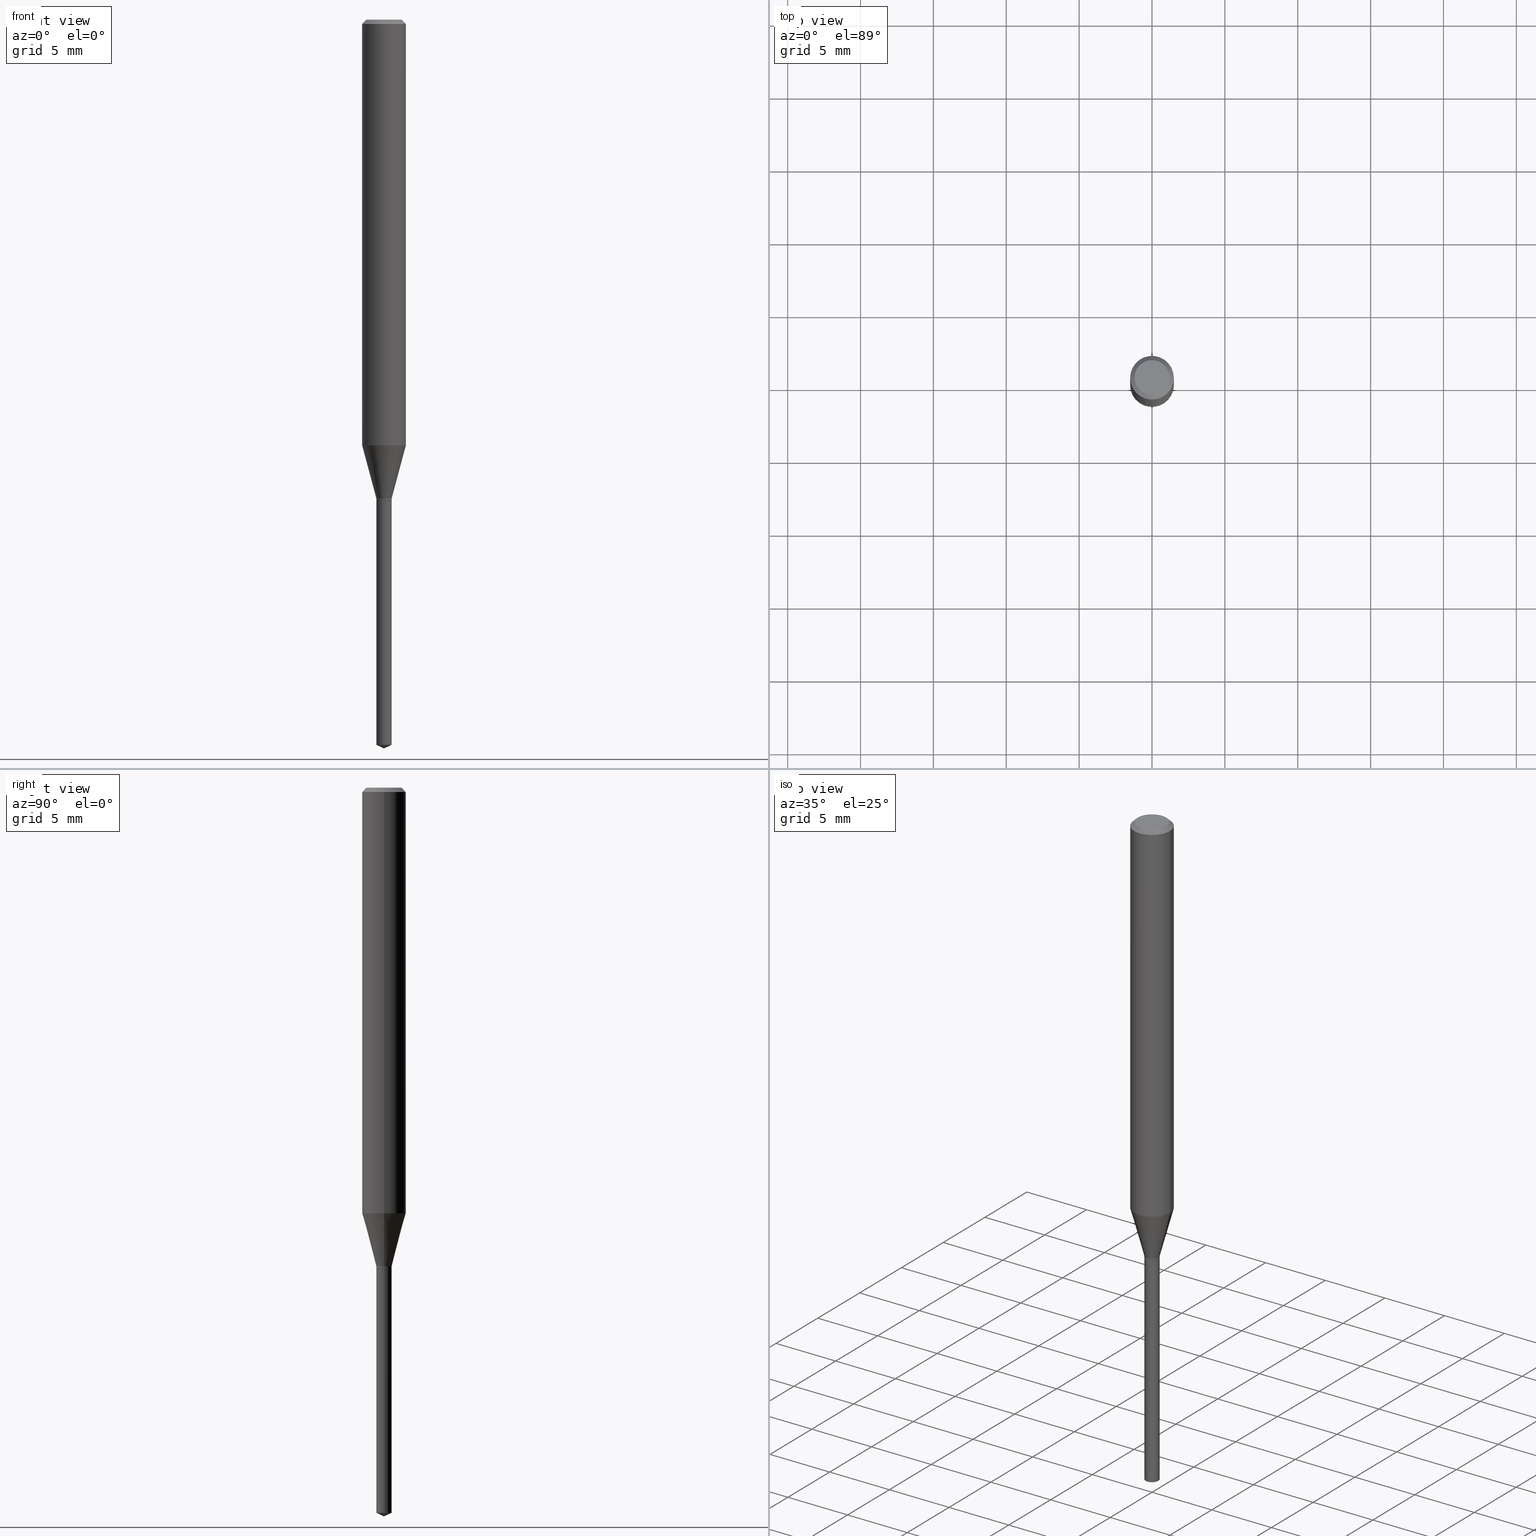
[diagram: canonical four-view strip — front | top / right | iso, engineering-drawing reading convention]
A machine part, canonical four-view strip (front | top / right | iso — engineering-drawing reading convention). The complete STEP part file that produces these views, byte-faithful:
ISO-10303-21;
HEADER;
FILE_DESCRIPTION (( 'STEP AP203' ),
    '1' );
FILE_NAME ('08149.STEP',
    '2024-04-24T13:09:04',
    ( '' ),
    ( '' ),
    'SwSTEP 2.0',
    'SolidWorks 2023',
    '' );
FILE_SCHEMA (( 'CONFIG_CONTROL_DESIGN' ));
ENDSEC;

DATA;
#1 = EDGE_CURVE ( 'NONE', #110, #261, #329, .T. ) ;
#2 = COORDINATED_UNIVERSAL_TIME_OFFSET ( 5, 0, .BEHIND. ) ;
#3 = CARTESIAN_POINT ( 'NONE',  ( 4.791580041195601474E-29, -6.841106398533702726E-15, -1.959370746859099510 ) ) ;
#4 = CONICAL_SURFACE ( 'NONE', #174, 0.02015000000000000124, 0.7853981633978495136 ) ;
#5 = AXIS2_PLACEMENT_3D ( 'NONE', #481, #12, #410 ) ;
#6 = CC_DESIGN_DATE_AND_TIME_ASSIGNMENT ( #356, #402, ( #467 ) ) ;
#7 = DIRECTION ( 'NONE',  ( 1.000000000000000000, -6.982962677686266711E-15, 0.000000000000000000 ) ) ;
#8 = DIRECTION ( 'NONE',  ( 1.000000000000000000, -6.982962677686266711E-15, 4.876176775795936353E-29 ) ) ;
#9 = CARTESIAN_POINT ( 'NONE',  ( 3.163213900800474296E-29, -4.516231111793608804E-15, -1.293500000000000094 ) ) ;
#10 = CARTESIAN_POINT ( 'NONE',  ( 2.888098660104663328E-31, -4.123439461173779030E-17, -0.01181000000000006871 ) ) ;
#11 = VECTOR ( 'NONE', #139, 39.37007874015748143 ) ;
#12 = DIRECTION ( 'NONE',  ( -2.445468806185136597E-29, 3.491481338843145583E-15, 1.000000000000000000 ) ) ;
#13 = DIRECTION ( 'NONE',  ( -0.9063077870366531563, 7.915267918739014631E-15, 0.4226182617406924469 ) ) ;
#14 = ORIENTED_EDGE ( 'NONE', *, *, #434, .F. ) ;
#15 = ORIENTED_EDGE ( 'NONE', *, *, #313, .T. ) ;
#16 = DIRECTION ( 'NONE',  ( -2.445468806185136597E-29, 3.491481338843145583E-15, 1.000000000000000000 ) ) ;
#17 = COORDINATED_UNIVERSAL_TIME_OFFSET ( 5, 0, .BEHIND. ) ;
#18 = AXIS2_PLACEMENT_3D ( 'NONE', #264, #78, #440 ) ;
#19 = AXIS2_PLACEMENT_3D ( 'NONE', #100, #370, #358 ) ;
#20 = VERTEX_POINT ( 'NONE', #437 ) ;
#21 = ADVANCED_FACE ( 'NONE', ( #104 ), #254, .T. ) ;
#22 =( LENGTH_UNIT ( ) NAMED_UNIT ( * ) SI_UNIT ( $, .METRE. ) );
#23 = DIRECTION ( 'NONE',  ( -2.445468806185136597E-29, 3.491481338843145583E-15, 1.000000000000000000 ) ) ;
#24 = CARTESIAN_POINT ( 'NONE',  ( -0.05905000000000006771, 4.195754854663396409E-16, -2.904631170795525045E-30 ) ) ;
#25 = CARTESIAN_POINT ( 'NONE',  ( 4.815128079378533515E-29, -6.874726756182153211E-15, -1.968999999999999861 ) ) ;
#26 = ORIENTED_EDGE ( 'NONE', *, *, #165, .T. ) ;
#27 = CARTESIAN_POINT ( 'NONE',  ( -0.02065000000000002944, -4.379454758674850674E-15, -1.293500000000000094 ) ) ;
#28 = DIRECTION ( 'NONE',  ( 2.445468806185136597E-29, -3.491481338843145583E-15, -1.000000000000000000 ) ) ;
#29 = VECTOR ( 'NONE', #340, 39.37007874015748143 ) ;
#30 = ADVANCED_FACE ( 'NONE', ( #406 ), #301, .T. ) ;
#31 = EDGE_CURVE ( 'NONE', #50, #20, #75, .T. ) ;
#32 = CIRCLE ( 'NONE', #309, 0.05904999999999999832 ) ;
#33 = PERSON_AND_ORGANIZATION ( #490, #257 ) ;
#34 = PRODUCT_DEFINITION_SHAPE ( 'NONE', 'NONE',  #72 ) ;
#35 = AXIS2_PLACEMENT_3D ( 'NONE', #216, #178, #324 ) ;
#36 = APPROVAL_PERSON_ORGANIZATION ( #218, #194, #66 ) ;
#37 = CALENDAR_DATE ( 2024, 24, 4 ) ;
#38 = DIRECTION ( 'NONE',  ( -2.445468806185136597E-29, 3.491481338843145583E-15, 1.000000000000000000 ) ) ;
#39 = EDGE_CURVE ( 'NONE', #279, #470, #129, .T. ) ;
#40 = EDGE_LOOP ( 'NONE', ( #58, #479, #166, #164 ) ) ;
#41 = PRODUCT ( '08149', '08149', '', ( #255 ) ) ;
#42 = AXIS2_PLACEMENT_3D ( 'NONE', #9, #416, #197 ) ;
#43 = CYLINDRICAL_SURFACE ( 'NONE', #77, 0.05905000000000006771 ) ;
#44 = CARTESIAN_POINT ( 'NONE',  ( -0.05904999999999999832, 3.711095515056362547E-16, -0.01181000000000006871 ) ) ;
#45 = DIRECTION ( 'NONE',  ( -2.445468806185136597E-29, 3.491481338843145583E-15, 1.000000000000000000 ) ) ;
#46 = ORIENTED_EDGE ( 'NONE', *, *, #224, .F. ) ;
#47 = CARTESIAN_POINT ( 'NONE',  ( 0.02065000000000000169, -4.682076475388656376E-15, -1.299699999999999855 ) ) ;
#48 = VERTEX_POINT ( 'NONE', #319 ) ;
#49 = CARTESIAN_POINT ( 'NONE',  ( 3.178375807398821559E-29, -4.537878296094435448E-15, -1.299699999999999855 ) ) ;
#50 = VERTEX_POINT ( 'NONE', #155 ) ;
#51 = CC_DESIGN_DATE_AND_TIME_ASSIGNMENT ( #69, #150, ( #72 ) ) ;
#52 = LINE ( 'NONE', #359, #215 ) ;
#53 = CONICAL_SURFACE ( 'NONE', #42, 0.02065000000000002944, 0.2617993877991499629 ) ;
#54 = ORIENTED_EDGE ( 'NONE', *, *, #117, .T. ) ;
#55 = DIRECTION ( 'NONE',  ( 1.000000000000000000, -6.982962677686264344E-15, 0.000000000000000000 ) ) ;
#56 = APPLICATION_PROTOCOL_DEFINITION ( 'international standard', 'config_control_design', 1994, #70 ) ;
#57 = ADVANCED_FACE ( 'NONE', ( #381 ), #360, .T. ) ;
#58 = ORIENTED_EDGE ( 'NONE', *, *, #31, .T. ) ;
#59 = CYLINDRICAL_SURFACE ( 'NONE', #272, 0.02065000000000000169 ) ;
#60 = CIRCLE ( 'NONE', #5, 0.05905000000000014404 ) ;
#61 = VERTEX_POINT ( 'NONE', #368 ) ;
#62 = DIRECTION ( 'NONE',  ( 1.000000000000000000, -6.982962677686266711E-15, 4.876176775795936353E-29 ) ) ;
#63 = ORIENTED_EDGE ( 'NONE', *, *, #434, .T. ) ;
#64 = CARTESIAN_POINT ( 'NONE',  ( 0.05904999999999999832, -4.463468013801466955E-16, -0.01181000000000006871 ) ) ;
#65 = EDGE_LOOP ( 'NONE', ( #391, #212, #388, #220 ) ) ;
#66 = APPROVAL_ROLE ( '' ) ;
#67 = CARTESIAN_POINT ( 'NONE',  ( 3.163213900800474296E-29, -4.516231111793608804E-15, -1.293500000000000094 ) ) ;
#68 = CC_DESIGN_PERSON_AND_ORGANIZATION_ASSIGNMENT ( #76, #154, ( #72 ) ) ;
#69 = DATE_AND_TIME ( #456, #208 ) ;
#70 = APPLICATION_CONTEXT ( 'configuration controlled 3d designs of mechanical parts and assemblies' ) ;
#71 = CARTESIAN_POINT ( 'NONE',  ( 3.178375807398821559E-29, -4.537878296094435448E-15, -1.299699999999999855 ) ) ;
#72 = PRODUCT_DEFINITION ( 'UNKNOWN', '', #232, #268 ) ;
#73 = ORIENTED_EDGE ( 'NONE', *, *, #224, .T. ) ;
#74 = APPROVAL_DATE_TIME ( #373, #480 ) ;
#75 = CIRCLE ( 'NONE', #160, 0.02065000000000000169 ) ;
#76 = PERSON_AND_ORGANIZATION ( #490, #257 ) ;
#77 = AXIS2_PLACEMENT_3D ( 'NONE', #344, #195, #8 ) ;
#78 = DIRECTION ( 'NONE',  ( -2.445468806185136597E-29, 3.491481338843145583E-15, 1.000000000000000000 ) ) ;
#79 = DIRECTION ( 'NONE',  ( 1.000000000000000000, -6.982962677686264344E-15, 0.000000000000000000 ) ) ;
#80 = SECURITY_CLASSIFICATION_LEVEL ( 'unclassified' ) ;
#81 = EDGE_CURVE ( 'NONE', #90, #438, #32, .T. ) ;
#82 = DIRECTION ( 'NONE',  ( -2.445468806185136597E-29, 3.491481338843145583E-15, 1.000000000000000000 ) ) ;
#83 = ORIENTED_EDGE ( 'NONE', *, *, #31, .F. ) ;
#84 = DIRECTION ( 'NONE',  ( 1.000000000000000000, -6.982962677686264344E-15, 0.000000000000000000 ) ) ;
#85 = DIRECTION ( 'NONE',  ( -1.000000000000000000, 6.982962677686266711E-15, 0.000000000000000000 ) ) ;
#86 = FACE_OUTER_BOUND ( 'NONE', #202, .T. ) ;
#87 = ORIENTED_EDGE ( 'NONE', *, *, #304, .T. ) ;
#88 = DIRECTION ( 'NONE',  ( 1.000000000000000000, -6.982962677686254878E-15, 0.000000000000000000 ) ) ;
#89 = DIRECTION ( 'NONE',  ( -2.445468806185136877E-29, 3.491481338843145188E-15, 1.000000000000000000 ) ) ;
#90 = VERTEX_POINT ( 'NONE', #471 ) ;
#91 = FACE_OUTER_BOUND ( 'NONE', #352, .T. ) ;
#92 = EDGE_CURVE ( 'NONE', #170, #110, #274, .T. ) ;
#93 = DIRECTION ( 'NONE',  ( 1.000000000000000000, -6.982962677686286432E-15, 0.000000000000000000 ) ) ;
#94 = EDGE_LOOP ( 'NONE', ( #374, #482, #128, #207 ) ) ;
#95 = DIRECTION ( 'NONE',  ( -2.445468806185136597E-29, 3.491481338843145583E-15, 1.000000000000000000 ) ) ;
#96 = EDGE_LOOP ( 'NONE', ( #285, #429 ) ) ;
#97 = AXIS2_PLACEMENT_3D ( 'NONE', #262, #487, #62 ) ;
#98 = AXIS2_PLACEMENT_3D ( 'NONE', #390, #23, #267 ) ;
#99 = CC_DESIGN_SECURITY_CLASSIFICATION ( #467, ( #232 ) ) ;
#100 = CARTESIAN_POINT ( 'NONE',  ( 4.132873053354867254E-48, -5.900647395337818946E-34, -1.690012582823346072E-19 ) ) ;
#101 = EDGE_CURVE ( 'NONE', #363, #140, #338, .T. ) ;
#102 = ORIENTED_EDGE ( 'NONE', *, *, #233, .F. ) ;
#103 = ORIENTED_EDGE ( 'NONE', *, *, #92, .T. ) ;
#104 = FACE_OUTER_BOUND ( 'NONE', #308, .T. ) ;
#105 = DIMENSIONAL_EXPONENTS ( 1.000000000000000000, 0.000000000000000000, 0.000000000000000000, 0.000000000000000000, 0.000000000000000000, 0.000000000000000000, 0.000000000000000000 ) ;
#106 = AXIS2_PLACEMENT_3D ( 'NONE', #126, #169, #84 ) ;
#107 = SHAPE_DEFINITION_REPRESENTATION ( #34, #204 ) ;
#108 = DIRECTION ( 'NONE',  ( -1.000000000000000000, 6.982962677686265922E-15, -4.876176775795935793E-29 ) ) ;
#109 = ORIENTED_EDGE ( 'NONE', *, *, #347, .T. ) ;
#110 = VERTEX_POINT ( 'NONE', #417 ) ;
#111 = DIRECTION ( 'NONE',  ( 1.000000000000000000, 0.000000000000000000, 0.000000000000000000 ) ) ;
#112 = CALENDAR_DATE ( 2024, 24, 4 ) ;
#113 = CARTESIAN_POINT ( 'NONE',  ( -9.146317137672921654E-28, 1.305851684738629534E-13, 37.40107874015748024 ) ) ;
#114 = AXIS2_PLACEMENT_3D ( 'NONE', #314, #203, #88 ) ;
#115 = APPROVAL_ROLE ( '' ) ;
#116 = CC_DESIGN_APPROVAL ( #480, ( #72 ) ) ;
#117 = EDGE_CURVE ( 'NONE', #326, #48, #443, .T. ) ;
#118 = APPROVAL_DATE_TIME ( #157, #354 ) ;
#119 = DIRECTION ( 'NONE',  ( 2.445468806185136597E-29, -3.491481338843145583E-15, -1.000000000000000000 ) ) ;
#120 = APPROVAL_STATUS ( 'not_yet_approved' ) ;
#121 = CIRCLE ( 'NONE', #466, 0.02065000000000002944 ) ;
#122 = LOCAL_TIME ( 9, 9, 4.000000000000000000, #2 ) ;
#123 = CARTESIAN_POINT ( 'NONE',  ( 2.888098660104663328E-31, -4.123439461173779030E-17, -0.01181000000000006871 ) ) ;
#124 = ADVANCED_FACE ( 'NONE', ( #86 ), #413, .T. ) ;
#125 = DIRECTION ( 'NONE',  ( 1.000000000000000000, -6.982962677686266711E-15, 0.000000000000000000 ) ) ;
#126 = CARTESIAN_POINT ( 'NONE',  ( 3.178375807398821559E-29, -4.537878296094435448E-15, -1.299699999999999855 ) ) ;
#127 = ORIENTED_EDGE ( 'NONE', *, *, #81, .T. ) ;
#128 = ORIENTED_EDGE ( 'NONE', *, *, #81, .F. ) ;
#129 = CIRCLE ( 'NONE', #400, 0.04724000000000000421 ) ;
#130 = AXIS2_PLACEMENT_3D ( 'NONE', #343, #323, #289 ) ;
#131 = ADVANCED_FACE ( 'NONE', ( #201 ), #4, .T. ) ;
#132 = LINE ( 'NONE', #379, #349 ) ;
#133 = DIRECTION ( 'NONE',  ( 1.000000000000000000, -6.982962677686267499E-15, 0.000000000000000000 ) ) ;
#134 = ORIENTED_EDGE ( 'NONE', *, *, #414, .T. ) ;
#135 = VERTEX_POINT ( 'NONE', #383 ) ;
#136 = EDGE_CURVE ( 'NONE', #61, #20, #198, .T. ) ;
#137 = AXIS2_PLACEMENT_3D ( 'NONE', #173, #321, #111 ) ;
#138 = DIRECTION ( 'NONE',  ( 1.000000000000000000, -6.982962677686266711E-15, 4.876185090822587894E-29 ) ) ;
#139 = DIRECTION ( 'NONE',  ( -2.445468806185136877E-29, 3.491481338843145188E-15, 1.000000000000000000 ) ) ;
#140 = VERTEX_POINT ( 'NONE', #235 ) ;
#141 = APPROVAL_DATE_TIME ( #397, #194 ) ;
#142 =( CONVERSION_BASED_UNIT ( 'INCH', #395 ) LENGTH_UNIT ( ) NAMED_UNIT ( #105 ) );
#143 = ORIENTED_EDGE ( 'NONE', *, *, #392, .T. ) ;
#144 = ADVANCED_FACE ( 'NONE', ( #276 ), #427, .T. ) ;
#145 = DIRECTION ( 'NONE',  ( -1.000000000000000000, 6.982962677686266711E-15, 0.000000000000000000 ) ) ;
#146 = CIRCLE ( 'NONE', #114, 0.02065000000000002944 ) ;
#147 = ORIENTED_EDGE ( 'NONE', *, *, #486, .T. ) ;
#148 = ORIENTED_EDGE ( 'NONE', *, *, #290, .F. ) ;
#149 = DIRECTION ( 'NONE',  ( -2.445468806185136877E-29, 3.491481338843145188E-15, 1.000000000000000000 ) ) ;
#150 = DATE_TIME_ROLE ( 'creation_date' ) ;
#151 = CARTESIAN_POINT ( 'NONE',  ( -0.02015000000000000124, -4.394703934838774463E-15, -1.299699999999999855 ) ) ;
#152 = MANIFOLD_SOLID_BREP ( 'Body-Move/Copy2[1]', #421 ) ;
#153 = ADVANCED_FACE ( 'NONE', ( #91 ), #43, .T. ) ;
#154 = PERSON_AND_ORGANIZATION_ROLE ( 'creator' ) ;
#155 = CARTESIAN_POINT ( 'NONE',  ( 0.02065000000000000863, -6.985304577827923654E-15, -1.959370746859099510 ) ) ;
#156 = DIRECTION ( 'NONE',  ( -2.445468806185136597E-29, 3.491481338843145583E-15, 1.000000000000000000 ) ) ;
#157 = DATE_AND_TIME ( #455, #122 ) ;
#158 = EDGE_CURVE ( 'NONE', #110, #135, #146, .T. ) ;
#159 = LINE ( 'NONE', #418, #322 ) ;
#160 = AXIS2_PLACEMENT_3D ( 'NONE', #217, #250, #55 ) ;
#161 = CC_DESIGN_APPROVAL ( #194, ( #467 ) ) ;
#162 = CARTESIAN_POINT ( 'NONE',  ( -0.02015000000000000124, -4.392054707664663262E-15, -1.299699999999999855 ) ) ;
#163 = CARTESIAN_POINT ( 'NONE',  ( 0.02015000000000000124, -4.678584994049814158E-15, -1.299699999999999855 ) ) ;
#164 = ORIENTED_EDGE ( 'NONE', *, *, #165, .F. ) ;
#165 = EDGE_CURVE ( 'NONE', #50, #48, #242, .T. ) ;
#166 = ORIENTED_EDGE ( 'NONE', *, *, #414, .F. ) ;
#167 = AXIS2_PLACEMENT_3D ( 'NONE', #206, #469, #463 ) ;
#168 = AXIS2_PLACEMENT_3D ( 'NONE', #71, #260, #361 ) ;
#169 = DIRECTION ( 'NONE',  ( -2.445468806185136597E-29, 3.491481338843145583E-15, 1.000000000000000000 ) ) ;
#170 = VERTEX_POINT ( 'NONE', #465 ) ;
#171 = ORIENTED_EDGE ( 'NONE', *, *, #200, .F. ) ;
#172 = ORIENTED_EDGE ( 'NONE', *, *, #182, .T. ) ;
#173 = CARTESIAN_POINT ( 'NONE',  ( 0.000000000000000000, 0.000000000000000000, 0.000000000000000000 ) ) ;
#174 = AXIS2_PLACEMENT_3D ( 'NONE', #350, #284, #428 ) ;
#175 = AXIS2_PLACEMENT_3D ( 'NONE', #123, #119, #85 ) ;
#176 = LOCAL_TIME ( 9, 9, 4.000000000000000000, #193 ) ;
#177 = EDGE_LOOP ( 'NONE', ( #87, #109, #311, #431 ) ) ;
#178 = DIRECTION ( 'NONE',  ( -2.445468806185136597E-29, 3.491481338843145583E-15, 1.000000000000000000 ) ) ;
#179 = ORIENTED_EDGE ( 'NONE', *, *, #39, .T. ) ;
#180 = APPROVAL_STATUS ( 'not_yet_approved' ) ;
#181 = DIRECTION ( 'NONE',  ( 1.000000000000000000, -6.982962677686254878E-15, 0.000000000000000000 ) ) ;
#182 = EDGE_CURVE ( 'NONE', #140, #90, #244, .T. ) ;
#183 = DIRECTION ( 'NONE',  ( 0.7071067811865453523, -7.319954787623248157E-15, -0.7071067811865496822 ) ) ;
#184 = DIRECTION ( 'NONE',  ( -0.7071067811868312347, 7.493145998871379679E-15, 0.7071067811862637997 ) ) ;
#185 = AXIS2_PLACEMENT_3D ( 'NONE', #439, #252, #259 ) ;
#186 = DIRECTION ( 'NONE',  ( -2.445468806185136597E-29, 3.491481338843145583E-15, 1.000000000000000000 ) ) ;
#187 = CARTESIAN_POINT ( 'NONE',  ( 3.178375807398821559E-29, -4.537878296094435448E-15, -1.299699999999999855 ) ) ;
#188 = EDGE_CURVE ( 'NONE', #261, #140, #52, .T. ) ;
#189 = PERSON_AND_ORGANIZATION_ROLE ( 'design_owner' ) ;
#190 = COORDINATED_UNIVERSAL_TIME_OFFSET ( 5, 0, .BEHIND. ) ;
#191 = AXIS2_PLACEMENT_3D ( 'NONE', #293, #28, #145 ) ;
#192 = APPLICATION_CONTEXT ( 'configuration controlled 3d designs of mechanical parts and assemblies' ) ;
#193 = COORDINATED_UNIVERSAL_TIME_OFFSET ( 5, 0, .BEHIND. ) ;
#194 = APPROVAL ( #180, 'UNSPECIFIED' ) ;
#195 = DIRECTION ( 'NONE',  ( -2.445468806185136597E-29, 3.491481338843145583E-15, 1.000000000000000000 ) ) ;
#196 = DIRECTION ( 'NONE',  ( 1.000000000000000000, -6.982962677686286432E-15, 0.000000000000000000 ) ) ;
#197 = DIRECTION ( 'NONE',  ( 1.000000000000000000, -6.982962677686254878E-15, 0.000000000000000000 ) ) ;
#198 = LINE ( 'NONE', #430, #348 ) ;
#199 = CONICAL_SURFACE ( 'NONE', #357, 0.02015000000000000124, 0.7853981633978495136 ) ;
#200 = EDGE_CURVE ( 'NONE', #473, #261, #433, .T. ) ;
#201 = FACE_OUTER_BOUND ( 'NONE', #365, .T. ) ;
#202 = EDGE_LOOP ( 'NONE', ( #236, #147, #102 ) ) ;
#203 = DIRECTION ( 'NONE',  ( -2.445468806185136597E-29, 3.491481338843145583E-15, 1.000000000000000000 ) ) ;
#204 = ADVANCED_BREP_SHAPE_REPRESENTATION ( '08149', ( #152, #477, #137 ), #423 ) ;
#205 = ORIENTED_EDGE ( 'NONE', *, *, #253, .F. ) ;
#206 = CARTESIAN_POINT ( 'NONE',  ( 2.812751929612976794E-29, -4.015864298984345288E-15, -1.150189248989355040 ) ) ;
#207 = ORIENTED_EDGE ( 'NONE', *, *, #182, .F. ) ;
#208 = LOCAL_TIME ( 9, 9, 4.000000000000000000, #303 ) ;
#209 = ORIENTED_EDGE ( 'NONE', *, *, #117, .F. ) ;
#210 = ORIENTED_EDGE ( 'NONE', *, *, #409, .T. ) ;
#211 = EDGE_CURVE ( 'NONE', #363, #438, #426, .T. ) ;
#212 = ORIENTED_EDGE ( 'NONE', *, *, #253, .T. ) ;
#213 = PERSON_AND_ORGANIZATION ( #490, #257 ) ;
#214 = DIRECTION ( 'NONE',  ( 0.9063077870366531563, -4.853149677051426910E-15, 0.4226182617406924469 ) ) ;
#215 = VECTOR ( 'NONE', #399, 39.37007874015748854 ) ;
#216 = CARTESIAN_POINT ( 'NONE',  ( 3.163213900800474296E-29, -4.516231111793608804E-15, -1.293500000000000094 ) ) ;
#217 = CARTESIAN_POINT ( 'NONE',  ( 4.791580041195601474E-29, -6.841106398533702726E-15, -1.959370746859099510 ) ) ;
#218 = PERSON_AND_ORGANIZATION ( #490, #257 ) ;
#219 = ADVANCED_FACE ( 'NONE', ( #227 ), #53, .T. ) ;
#220 = ORIENTED_EDGE ( 'NONE', *, *, #188, .F. ) ;
#221 = LINE ( 'NONE', #398, #11 ) ;
#222 = ORIENTED_EDGE ( 'NONE', *, *, #188, .T. ) ;
#223 = PLANE ( 'NONE',  #19 ) ;
#224 = EDGE_CURVE ( 'NONE', #438, #90, #339, .T. ) ;
#225 = DIRECTION ( 'NONE',  ( 1.000000000000000000, -6.982962677686267499E-15, 0.000000000000000000 ) ) ;
#226 = AXIS2_PLACEMENT_3D ( 'NONE', #187, #325, #108 ) ;
#227 = FACE_OUTER_BOUND ( 'NONE', #316, .T. ) ;
#228 = FACE_OUTER_BOUND ( 'NONE', #94, .T. ) ;
#229 = PERSON_AND_ORGANIZATION ( #490, #257 ) ;
#230 = AXIS2_PLACEMENT_3D ( 'NONE', #278, #45, #419 ) ;
#231 = CONICAL_SURFACE ( 'NONE', #175, 0.05904999999999999832, 0.7853981633974452814 ) ;
#232 = PRODUCT_DEFINITION_FORMATION_WITH_SPECIFIED_SOURCE ( 'ANY', '', #41, .NOT_KNOWN. ) ;
#233 = EDGE_CURVE ( 'NONE', #20, #50, #459, .T. ) ;
#234 = PERSON_AND_ORGANIZATION ( #490, #257 ) ;
#235 = CARTESIAN_POINT ( 'NONE',  ( 0.05905000000000015098, -4.428208245101720208E-15, -1.150189248989355040 ) ) ;
#236 = ORIENTED_EDGE ( 'NONE', *, *, #136, .F. ) ;
#237 = AXIS2_PLACEMENT_3D ( 'NONE', #67, #186, #334 ) ;
#238 = DIRECTION ( 'NONE',  ( -2.445468806185136597E-29, 3.491481338843145583E-15, 1.000000000000000000 ) ) ;
#239 = CIRCLE ( 'NONE', #185, 0.02065000000000000169 ) ;
#240 = ORIENTED_EDGE ( 'NONE', *, *, #233, .T. ) ;
#241 = VECTOR ( 'NONE', #149, 39.37007874015748143 ) ;
#242 = LINE ( 'NONE', #47, #341 ) ;
#243 = ORIENTED_EDGE ( 'NONE', *, *, #200, .T. ) ;
#244 = LINE ( 'NONE', #389, #29 ) ;
#245 = DIRECTION ( 'NONE',  ( 1.000000000000000000, -6.982962677686266711E-15, 4.876176775795936353E-29 ) ) ;
#246 = ORIENTED_EDGE ( 'NONE', *, *, #409, .F. ) ;
#247 = EDGE_CURVE ( 'NONE', #279, #438, #460, .T. ) ;
#248 = CIRCLE ( 'NONE', #168, 0.02015000000000000124 ) ;
#249 = LOCAL_TIME ( 9, 9, 4.000000000000000000, #190 ) ;
#250 = DIRECTION ( 'NONE',  ( -2.445468806185136597E-29, 3.491481338843145583E-15, 1.000000000000000000 ) ) ;
#251 = FACE_OUTER_BOUND ( 'NONE', #263, .T. ) ;
#252 = DIRECTION ( 'NONE',  ( -2.445468806185136597E-29, 3.491481338843145583E-15, 1.000000000000000000 ) ) ;
#253 = EDGE_CURVE ( 'NONE', #473, #363, #159, .T. ) ;
#254 = CYLINDRICAL_SURFACE ( 'NONE', #97, 0.02065000000000002944 ) ;
#255 = MECHANICAL_CONTEXT ( 'NONE', #70, 'mechanical' ) ;
#256 = VECTOR ( 'NONE', #446, 39.37007874015748143 ) ;
#257 = ORGANIZATION ( 'UNSPECIFIED', 'UNSPECIFIED', '' ) ;
#258 = CARTESIAN_POINT ( 'NONE',  ( 2.888098660104663328E-31, -4.123439461173779030E-17, -0.01181000000000006871 ) ) ;
#259 = DIRECTION ( 'NONE',  ( 1.000000000000000000, -6.982962677686264344E-15, 0.000000000000000000 ) ) ;
#260 = DIRECTION ( 'NONE',  ( -2.445468806185136597E-29, 3.491481338843145583E-15, 1.000000000000000000 ) ) ;
#261 = VERTEX_POINT ( 'NONE', #468 ) ;
#262 = CARTESIAN_POINT ( 'NONE',  ( 0.000000000000000000, 0.000000000000000000, 0.000000000000000000 ) ) ;
#263 = EDGE_LOOP ( 'NONE', ( #179, #143 ) ) ;
#264 = CARTESIAN_POINT ( 'NONE',  ( 0.000000000000000000, 0.000000000000000000, 0.000000000000000000 ) ) ;
#265 = APPROVAL_ROLE ( '' ) ;
#266 = DIRECTION ( 'NONE',  ( -2.445468806185136597E-29, 3.491481338843145583E-15, 1.000000000000000000 ) ) ;
#267 = DIRECTION ( 'NONE',  ( 1.000000000000000000, -6.982962677686266711E-15, 4.876185090822587894E-29 ) ) ;
#268 = DESIGN_CONTEXT ( 'detailed design', #192, 'design' ) ;
#269 = ORIENTED_EDGE ( 'NONE', *, *, #441, .F. ) ;
#270 = ADVANCED_FACE ( 'NONE', ( #424 ), #231, .T. ) ;
#271 = AXIS2_PLACEMENT_3D ( 'NONE', #385, #82, #133 ) ;
#272 = AXIS2_PLACEMENT_3D ( 'NONE', #484, #366, #364 ) ;
#273 = DIRECTION ( 'NONE',  ( -2.445468806185136597E-29, 3.491481338843145583E-15, 1.000000000000000000 ) ) ;
#274 = LINE ( 'NONE', #163, #280 ) ;
#275 = ORIENTED_EDGE ( 'NONE', *, *, #320, .F. ) ;
#276 = FACE_OUTER_BOUND ( 'NONE', #40, .T. ) ;
#277 = DIRECTION ( 'NONE',  ( -0.7071067811865453523, 2.468850131082234184E-15, -0.7071067811865496822 ) ) ;
#278 = CARTESIAN_POINT ( 'NONE',  ( 3.178375807398821559E-29, -4.537878296094435448E-15, -1.299699999999999855 ) ) ;
#279 = VERTEX_POINT ( 'NONE', #382 ) ;
#280 = VECTOR ( 'NONE', #345, 39.37007874015748143 ) ;
#281 = CIRCLE ( 'NONE', #422, 0.02015000000000000124 ) ;
#282 = VERTEX_POINT ( 'NONE', #162 ) ;
#283 = CARTESIAN_POINT ( 'NONE',  ( 3.178375807398821559E-29, -4.537878296094435448E-15, -1.299699999999999855 ) ) ;
#284 = DIRECTION ( 'NONE',  ( -2.445468806185136597E-29, 3.491481338843145583E-15, 1.000000000000000000 ) ) ;
#285 = ORIENTED_EDGE ( 'NONE', *, *, #304, .F. ) ;
#286 = CC_DESIGN_PERSON_AND_ORGANIZATION_ASSIGNMENT ( #234, #378, ( #467 ) ) ;
#287 = CARTESIAN_POINT ( 'NONE',  ( -0.02065000000000000169, -5.542765272379608387E-15, -1.299699999999999855 ) ) ;
#288 = AXIS2_PLACEMENT_3D ( 'NONE', #10, #156, #7 ) ;
#289 = DIRECTION ( 'NONE',  ( 1.000000000000000000, -6.982962677686265922E-15, 4.876176775795935793E-29 ) ) ;
#290 = EDGE_CURVE ( 'NONE', #20, #326, #132, .T. ) ;
#291 = ORIENTED_EDGE ( 'NONE', *, *, #392, .F. ) ;
#292 = FACE_OUTER_BOUND ( 'NONE', #451, .T. ) ;
#293 = CARTESIAN_POINT ( 'NONE',  ( 2.888098660104663328E-31, -4.123439461173779030E-17, -0.01181000000000006871 ) ) ;
#294 = ORIENTED_EDGE ( 'NONE', *, *, #247, .T. ) ;
#295 = CYLINDRICAL_SURFACE ( 'NONE', #401, 0.05905000000000006771 ) ;
#296 = CARTESIAN_POINT ( 'NONE',  ( 0.02065000000000002944, -1.441981792942216182E-16, 1.006930504201862259E-30 ) ) ;
#297 = LINE ( 'NONE', #25, #483 ) ;
#298 = ORIENTED_EDGE ( 'NONE', *, *, #39, .F. ) ;
#299 = ADVANCED_FACE ( 'NONE', ( #387 ), #199, .T. ) ;
#300 = DIRECTION ( 'NONE',  ( -2.445468806185136597E-29, 3.491481338843145583E-15, 1.000000000000000000 ) ) ;
#301 = CONICAL_SURFACE ( 'NONE', #237, 0.02065000000000002944, 0.2617993877991499629 ) ;
#302 = AXIS2_PLACEMENT_3D ( 'NONE', #371, #266, #405 ) ;
#303 = COORDINATED_UNIVERSAL_TIME_OFFSET ( 5, 0, .BEHIND. ) ;
#304 = EDGE_CURVE ( 'NONE', #170, #282, #281, .T. ) ;
#305 = PERSON_AND_ORGANIZATION ( #490, #257 ) ;
#306 = ADVANCED_FACE ( 'NONE', ( #450 ), #375, .T. ) ;
#307 = LOCAL_TIME ( 9, 9, 4.000000000000000000, #17 ) ;
#308 = EDGE_LOOP ( 'NONE', ( #14, #478, #396, #171 ) ) ;
#309 = AXIS2_PLACEMENT_3D ( 'NONE', #258, #300, #125 ) ;
#310 = AXIS2_PLACEMENT_3D ( 'NONE', #3, #238, #79 ) ;
#311 = ORIENTED_EDGE ( 'NONE', *, *, #158, .F. ) ;
#312 = CC_DESIGN_APPROVAL ( #354, ( #232 ) ) ;
#313 = EDGE_CURVE ( 'NONE', #282, #170, #248, .T. ) ;
#314 = CARTESIAN_POINT ( 'NONE',  ( 3.177153072995729878E-29, -4.536132555425015522E-15, -1.299200000000000133 ) ) ;
#315 = CARTESIAN_POINT ( 'NONE',  ( -0.05905000000000015098, -3.596288813518005006E-15, -1.150189248989355040 ) ) ;
#316 = EDGE_LOOP ( 'NONE', ( #205, #243, #222, #353 ) ) ;
#317 = ORIENTED_EDGE ( 'NONE', *, *, #136, .T. ) ;
#318 =( NAMED_UNIT ( * ) PLANE_ANGLE_UNIT ( ) SI_UNIT ( $, .RADIAN. ) );
#319 = CARTESIAN_POINT ( 'NONE',  ( 0.02065000000000000169, -4.682076475388656376E-15, -1.299699999999999855 ) ) ;
#320 = EDGE_CURVE ( 'NONE', #261, #473, #489, .T. ) ;
#321 = DIRECTION ( 'NONE',  ( 0.000000000000000000, 0.000000000000000000, 1.000000000000000000 ) ) ;
#322 = VECTOR ( 'NONE', #458, 39.37007874015748854 ) ;
#323 = DIRECTION ( 'NONE',  ( -2.438088387897960049E-29, 3.491481338843145188E-15, 1.000000000000000000 ) ) ;
#324 = DIRECTION ( 'NONE',  ( 1.000000000000000000, -6.982962677686254878E-15, 0.000000000000000000 ) ) ;
#325 = DIRECTION ( 'NONE',  ( 2.438088387897960049E-29, -3.491481338843145188E-15, -1.000000000000000000 ) ) ;
#326 = VERTEX_POINT ( 'NONE', #287 ) ;
#327 = CARTESIAN_POINT ( 'NONE',  ( 3.177153072995729878E-29, -4.536132555425015522E-15, -1.299200000000000133 ) ) ;
#328 = FACE_OUTER_BOUND ( 'NONE', #476, .T. ) ;
#329 = LINE ( 'NONE', #296, #256 ) ;
#330 = DIRECTION ( 'NONE',  ( -2.445468806185136597E-29, 3.491481338843145583E-15, 1.000000000000000000 ) ) ;
#331 = AXIS2_PLACEMENT_3D ( 'NONE', #113, #407, #225 ) ;
#332 = CC_DESIGN_PERSON_AND_ORGANIZATION_ASSIGNMENT ( #305, #412, ( #232 ) ) ;
#333 = FACE_OUTER_BOUND ( 'NONE', #342, .T. ) ;
#334 = DIRECTION ( 'NONE',  ( 1.000000000000000000, -6.982962677686254878E-15, 0.000000000000000000 ) ) ;
#335 = FACE_OUTER_BOUND ( 'NONE', #96, .T. ) ;
#336 = ADVANCED_FACE ( 'NONE', ( #328 ), #369, .F. ) ;
#337 = APPLICATION_PROTOCOL_DEFINITION ( 'international standard', 'config_control_design', 1994, #192 ) ;
#338 = CIRCLE ( 'NONE', #167, 0.05905000000000014404 ) ;
#339 = CIRCLE ( 'NONE', #288, 0.05904999999999999832 ) ;
#340 = DIRECTION ( 'NONE',  ( -2.445468806185136877E-29, 3.491481338843145188E-15, 1.000000000000000000 ) ) ;
#341 = VECTOR ( 'NONE', #346, 39.37007874015748143 ) ;
#342 = EDGE_LOOP ( 'NONE', ( #246, #298, #294, #73 ) ) ;
#343 = CARTESIAN_POINT ( 'NONE',  ( 3.178375807398821559E-29, -4.537878296094435448E-15, -1.299699999999999855 ) ) ;
#344 = CARTESIAN_POINT ( 'NONE',  ( 0.000000000000000000, 0.000000000000000000, 0.000000000000000000 ) ) ;
#345 = DIRECTION ( 'NONE',  ( 0.7071067811868312347, -2.468850131085228700E-15, 0.7071067811862637997 ) ) ;
#346 = DIRECTION ( 'NONE',  ( -2.445468806185136877E-29, 3.491481338843145188E-15, 1.000000000000000000 ) ) ;
#347 = EDGE_CURVE ( 'NONE', #282, #135, #488, .T. ) ;
#348 = VECTOR ( 'NONE', #13, 39.37007874015748143 ) ;
#349 = VECTOR ( 'NONE', #89, 39.37007874015748143 ) ;
#350 = CARTESIAN_POINT ( 'NONE',  ( 3.178375807398821559E-29, -4.537878296094435448E-15, -1.299699999999999855 ) ) ;
#351 = APPROVAL_PERSON_ORGANIZATION ( #452, #480, #115 ) ;
#352 = EDGE_LOOP ( 'NONE', ( #461, #447, #172, #46 ) ) ;
#353 = ORIENTED_EDGE ( 'NONE', *, *, #101, .F. ) ;
#354 = APPROVAL ( #120, 'UNSPECIFIED' ) ;
#355 = CARTESIAN_POINT ( 'NONE',  ( 8.265746106709734507E-48, -1.180129479067563789E-33, -3.380025165646692144E-19 ) ) ;
#356 = DATE_AND_TIME ( #37, #176 ) ;
#357 = AXIS2_PLACEMENT_3D ( 'NONE', #283, #38, #93 ) ;
#358 = DIRECTION ( 'NONE',  ( -1.000000000000000000, 6.982962677686265922E-15, -4.876176775795935793E-29 ) ) ;
#359 = CARTESIAN_POINT ( 'NONE',  ( 0.02065000000000002944, -4.660429291087830521E-15, -1.293500000000000094 ) ) ;
#360 = CYLINDRICAL_SURFACE ( 'NONE', #18, 0.02065000000000002944 ) ;
#361 = DIRECTION ( 'NONE',  ( 1.000000000000000000, -6.982962677686286432E-15, 0.000000000000000000 ) ) ;
#362 = ORIENTED_EDGE ( 'NONE', *, *, #347, .F. ) ;
#363 = VERTEX_POINT ( 'NONE', #315 ) ;
#364 = DIRECTION ( 'NONE',  ( 1.000000000000000000, -6.982962677686264344E-15, 0.000000000000000000 ) ) ;
#365 = EDGE_LOOP ( 'NONE', ( #362, #15, #103, #269 ) ) ;
#366 = DIRECTION ( 'NONE',  ( -2.445468806185136597E-29, 3.491481338843145583E-15, 1.000000000000000000 ) ) ;
#367 = EDGE_CURVE ( 'NONE', #140, #363, #60, .T. ) ;
#368 = CARTESIAN_POINT ( 'NONE',  ( 4.815128079378533515E-29, -6.874726756182153211E-15, -1.968999999999999861 ) ) ;
#369 = PLANE ( 'NONE',  #226 ) ;
#370 = DIRECTION ( 'NONE',  ( 2.438088387897960049E-29, -3.491481338843145188E-15, -1.000000000000000000 ) ) ;
#371 = CARTESIAN_POINT ( 'NONE',  ( 3.163213900800474296E-29, -4.516231111793608804E-15, -1.293500000000000094 ) ) ;
#372 = ADVANCED_FACE ( 'NONE', ( #333 ), #408, .T. ) ;
#373 = DATE_AND_TIME ( #112, #249 ) ;
#374 = ORIENTED_EDGE ( 'NONE', *, *, #367, .T. ) ;
#375 = CONICAL_SURFACE ( 'NONE', #331, 84.42940631927567097, 1.134464013796322002 ) ;
#376 = APPROVAL_PERSON_ORGANIZATION ( #229, #354, #265 ) ;
#377 = ORIENTED_EDGE ( 'NONE', *, *, #1, .F. ) ;
#378 = PERSON_AND_ORGANIZATION_ROLE ( 'classification_officer' ) ;
#379 = CARTESIAN_POINT ( 'NONE',  ( -0.02065000000000000169, -4.391151221159975142E-15, -1.299699999999999855 ) ) ;
#380 = ADVANCED_FACE ( 'NONE', ( #228 ), #295, .T. ) ;
#381 = FACE_OUTER_BOUND ( 'NONE', #425, .T. ) ;
#382 = CARTESIAN_POINT ( 'NONE',  ( -0.04724000000000000421, 3.504923541997677355E-16, -3.380025165670481712E-19 ) ) ;
#383 = CARTESIAN_POINT ( 'NONE',  ( -0.02065000000000002944, -4.379454758674850674E-15, -1.299200000000000133 ) ) ;
#384 = CIRCLE ( 'NONE', #98, 0.04724000000000000421 ) ;
#385 = CARTESIAN_POINT ( 'NONE',  ( -9.146317137672921654E-28, 1.305851684738629534E-13, 37.40107874015748024 ) ) ;
#386 = PRODUCT_RELATED_PRODUCT_CATEGORY ( 'detail', '', ( #41 ) ) ;
#387 = FACE_OUTER_BOUND ( 'NONE', #177, .T. ) ;
#388 = ORIENTED_EDGE ( 'NONE', *, *, #367, .F. ) ;
#389 = CARTESIAN_POINT ( 'NONE',  ( 0.05905000000000006771, -4.123439461173745257E-16, 2.879382386107503723E-30 ) ) ;
#390 = CARTESIAN_POINT ( 'NONE',  ( 8.265746106709734507E-48, -1.180129479067563789E-33, -3.380025165646692144E-19 ) ) ;
#391 = ORIENTED_EDGE ( 'NONE', *, *, #320, .T. ) ;
#392 = EDGE_CURVE ( 'NONE', #470, #279, #384, .T. ) ;
#393 = UNCERTAINTY_MEASURE_WITH_UNIT (LENGTH_MEASURE( 1.000000000000000082E-05 ), #142, 'distance_accuracy_value', 'NONE');
#394 = EDGE_LOOP ( 'NONE', ( #291, #210, #127, #472 ) ) ;
#395 = LENGTH_MEASURE_WITH_UNIT ( LENGTH_MEASURE( 0.02539999999999999897 ), #22 );
#396 = ORIENTED_EDGE ( 'NONE', *, *, #1, .T. ) ;
#397 = DATE_AND_TIME ( #435, #307 ) ;
#398 = CARTESIAN_POINT ( 'NONE',  ( -0.02065000000000002944, 1.467270749344608976E-16, -1.015760096137639348E-30 ) ) ;
#399 = DIRECTION ( 'NONE',  ( 0.2588190451025212391, 1.565188264969622362E-15, 0.9659258262890679791 ) ) ;
#400 = AXIS2_PLACEMENT_3D ( 'NONE', #355, #16, #138 ) ;
#401 = AXIS2_PLACEMENT_3D ( 'NONE', #485, #95, #245 ) ;
#402 = DATE_TIME_ROLE ( 'classification_date' ) ;
#403 = ADVANCED_FACE ( 'NONE', ( #335 ), #411, .F. ) ;
#404 = CARTESIAN_POINT ( 'NONE',  ( 0.04724000000000000421, -3.852183633974369345E-16, -3.380025165621689721E-19 ) ) ;
#405 = DIRECTION ( 'NONE',  ( 1.000000000000000000, -6.982962677686254878E-15, 0.000000000000000000 ) ) ;
#406 = FACE_OUTER_BOUND ( 'NONE', #65, .T. ) ;
#407 = DIRECTION ( 'NONE',  ( -2.445468806185136597E-29, 3.491481338843145583E-15, 1.000000000000000000 ) ) ;
#408 = CONICAL_SURFACE ( 'NONE', #191, 0.05904999999999999832, 0.7853981633974452814 ) ;
#409 = EDGE_CURVE ( 'NONE', #470, #90, #436, .T. ) ;
#410 = DIRECTION ( 'NONE',  ( 1.000000000000000000, -6.982962677686272233E-15, 0.000000000000000000 ) ) ;
#411 = PLANE ( 'NONE',  #130 ) ;
#412 = PERSON_AND_ORGANIZATION_ROLE ( 'design_supplier' ) ;
#413 = CONICAL_SURFACE ( 'NONE', #271, 84.42940631927567097, 1.134464013796322002 ) ;
#414 = EDGE_CURVE ( 'NONE', #48, #326, #239, .T. ) ;
#415 = PERSON_AND_ORGANIZATION_ROLE ( 'creator' ) ;
#416 = DIRECTION ( 'NONE',  ( -2.445468806185136597E-29, 3.491481338843145583E-15, 1.000000000000000000 ) ) ;
#417 = CARTESIAN_POINT ( 'NONE',  ( 0.02065000000000002944, -4.680330734719237239E-15, -1.299200000000000133 ) ) ;
#418 = CARTESIAN_POINT ( 'NONE',  ( -0.02065000000000002944, -4.369504036859147709E-15, -1.293500000000000094 ) ) ;
#419 = DIRECTION ( 'NONE',  ( 1.000000000000000000, -6.982962677686264344E-15, 0.000000000000000000 ) ) ;
#420 = ADVANCED_FACE ( 'NONE', ( #251 ), #223, .F. ) ;
#421 = CLOSED_SHELL ( 'NONE', ( #144, #306, #124, #462, #336 ) ) ;
#422 = AXIS2_PLACEMENT_3D ( 'NONE', #49, #273, #196 ) ;
#423 =( GEOMETRIC_REPRESENTATION_CONTEXT ( 3 ) GLOBAL_UNCERTAINTY_ASSIGNED_CONTEXT ( ( #393 ) ) GLOBAL_UNIT_ASSIGNED_CONTEXT ( ( #142, #318, #474 ) ) REPRESENTATION_CONTEXT ( 'NONE', 'WORKASPACE' ) );
#424 = FACE_OUTER_BOUND ( 'NONE', #394, .T. ) ;
#425 = EDGE_LOOP ( 'NONE', ( #442, #63, #275, #377 ) ) ;
#426 = LINE ( 'NONE', #24, #241 ) ;
#427 = CYLINDRICAL_SURFACE ( 'NONE', #106, 0.02065000000000000169 ) ;
#428 = DIRECTION ( 'NONE',  ( 1.000000000000000000, -6.982962677686286432E-15, 0.000000000000000000 ) ) ;
#429 = ORIENTED_EDGE ( 'NONE', *, *, #313, .F. ) ;
#430 = CARTESIAN_POINT ( 'NONE',  ( 4.815128079378533515E-29, -6.874726756182153211E-15, -1.968999999999999861 ) ) ;
#431 = ORIENTED_EDGE ( 'NONE', *, *, #92, .F. ) ;
#432 = ORIENTED_EDGE ( 'NONE', *, *, #486, .F. ) ;
#433 = CIRCLE ( 'NONE', #35, 0.02065000000000002944 ) ;
#434 = EDGE_CURVE ( 'NONE', #135, #473, #221, .T. ) ;
#435 = CALENDAR_DATE ( 2024, 24, 4 ) ;
#436 = LINE ( 'NONE', #64, #454 ) ;
#437 = CARTESIAN_POINT ( 'NONE',  ( -0.02065000000000000863, -6.694379323599242420E-15, -1.959370746859099510 ) ) ;
#438 = VERTEX_POINT ( 'NONE', #445 ) ;
#439 = CARTESIAN_POINT ( 'NONE',  ( 3.178375807398821559E-29, -4.537878296094435448E-15, -1.299699999999999855 ) ) ;
#440 = DIRECTION ( 'NONE',  ( 1.000000000000000000, -6.982962677686266711E-15, 4.876176775795936353E-29 ) ) ;
#441 = EDGE_CURVE ( 'NONE', #135, #110, #121, .T. ) ;
#442 = ORIENTED_EDGE ( 'NONE', *, *, #158, .T. ) ;
#443 = CIRCLE ( 'NONE', #230, 0.02065000000000000169 ) ;
#444 = VECTOR ( 'NONE', #277, 39.37007874015748143 ) ;
#445 = CARTESIAN_POINT ( 'NONE',  ( -0.05904999999999999832, -1.608973861331701029E-15, -0.01181000000000006871 ) ) ;
#446 = DIRECTION ( 'NONE',  ( -2.445468806185136877E-29, 3.491481338843145188E-15, 1.000000000000000000 ) ) ;
#447 = ORIENTED_EDGE ( 'NONE', *, *, #101, .T. ) ;
#448 = CC_DESIGN_PERSON_AND_ORGANIZATION_ASSIGNMENT ( #213, #189, ( #41 ) ) ;
#449 = APPROVAL_STATUS ( 'not_yet_approved' ) ;
#450 = FACE_OUTER_BOUND ( 'NONE', #464, .T. ) ;
#451 = EDGE_LOOP ( 'NONE', ( #148, #240, #26, #209 ) ) ;
#452 = PERSON_AND_ORGANIZATION ( #490, #257 ) ;
#453 = VECTOR ( 'NONE', #184, 39.37007874015748143 ) ;
#454 = VECTOR ( 'NONE', #183, 39.37007874015748143 ) ;
#455 = CALENDAR_DATE ( 2024, 24, 4 ) ;
#456 = CALENDAR_DATE ( 2024, 24, 4 ) ;
#457 = CC_DESIGN_PERSON_AND_ORGANIZATION_ASSIGNMENT ( #33, #415, ( #232 ) ) ;
#458 = DIRECTION ( 'NONE',  ( -0.2588190451025212391, 5.211531920934549464E-15, 0.9659258262890679791 ) ) ;
#459 = CIRCLE ( 'NONE', #310, 0.02065000000000000169 ) ;
#460 = LINE ( 'NONE', #44, #444 ) ;
#461 = ORIENTED_EDGE ( 'NONE', *, *, #211, .F. ) ;
#462 = ADVANCED_FACE ( 'NONE', ( #292 ), #59, .T. ) ;
#463 = DIRECTION ( 'NONE',  ( 1.000000000000000000, -6.982962677686272233E-15, 0.000000000000000000 ) ) ;
#464 = EDGE_LOOP ( 'NONE', ( #432, #317, #83 ) ) ;
#465 = CARTESIAN_POINT ( 'NONE',  ( 0.02015000000000000124, -4.678584994049814158E-15, -1.299699999999999855 ) ) ;
#466 = AXIS2_PLACEMENT_3D ( 'NONE', #327, #330, #181 ) ;
#467 = SECURITY_CLASSIFICATION ( '', '', #80 ) ;
#468 = CARTESIAN_POINT ( 'NONE',  ( 0.02065000000000002944, -4.660429291087830521E-15, -1.293500000000000094 ) ) ;
#469 = DIRECTION ( 'NONE',  ( -2.445468806185136597E-29, 3.491481338843145583E-15, 1.000000000000000000 ) ) ;
#470 = VERTEX_POINT ( 'NONE', #404 ) ;
#471 = CARTESIAN_POINT ( 'NONE',  ( 0.05904999999999999832, -4.535783407291118600E-16, -0.01181000000000006871 ) ) ;
#472 = ORIENTED_EDGE ( 'NONE', *, *, #247, .F. ) ;
#473 = VERTEX_POINT ( 'NONE', #27 ) ;
#474 =( NAMED_UNIT ( * ) SI_UNIT ( $, .STERADIAN. ) SOLID_ANGLE_UNIT ( ) );
#475 = CLOSED_SHELL ( 'NONE', ( #299, #270, #380, #30, #57, #21, #219, #153, #372, #420, #403, #131 ) ) ;
#476 = EDGE_LOOP ( 'NONE', ( #134, #54 ) ) ;
#477 = MANIFOLD_SOLID_BREP ( 'Body-Move/Copy2[2]', #475 ) ;
#478 = ORIENTED_EDGE ( 'NONE', *, *, #441, .T. ) ;
#479 = ORIENTED_EDGE ( 'NONE', *, *, #290, .T. ) ;
#480 = APPROVAL ( #449, 'UNSPECIFIED' ) ;
#481 = CARTESIAN_POINT ( 'NONE',  ( 2.812751929612976794E-29, -4.015864298984345288E-15, -1.150189248989355040 ) ) ;
#482 = ORIENTED_EDGE ( 'NONE', *, *, #211, .T. ) ;
#483 = VECTOR ( 'NONE', #214, 39.37007874015748143 ) ;
#484 = CARTESIAN_POINT ( 'NONE',  ( 3.178375807398821559E-29, -4.537878296094435448E-15, -1.299699999999999855 ) ) ;
#485 = CARTESIAN_POINT ( 'NONE',  ( 0.000000000000000000, 0.000000000000000000, 0.000000000000000000 ) ) ;
#486 = EDGE_CURVE ( 'NONE', #61, #50, #297, .T. ) ;
#487 = DIRECTION ( 'NONE',  ( -2.445468806185136597E-29, 3.491481338843145583E-15, 1.000000000000000000 ) ) ;
#488 = LINE ( 'NONE', #151, #453 ) ;
#489 = CIRCLE ( 'NONE', #302, 0.02065000000000002944 ) ;
#490 = PERSON ( 'UNSPECIFIED', 'UNSPECIFIED', 'UNSPECIFIED', ('UNSPECIFIED'), ('UNSPECIFIED'), ('UNSPECIFIED') ) ;
ENDSEC;
END-ISO-10303-21;
